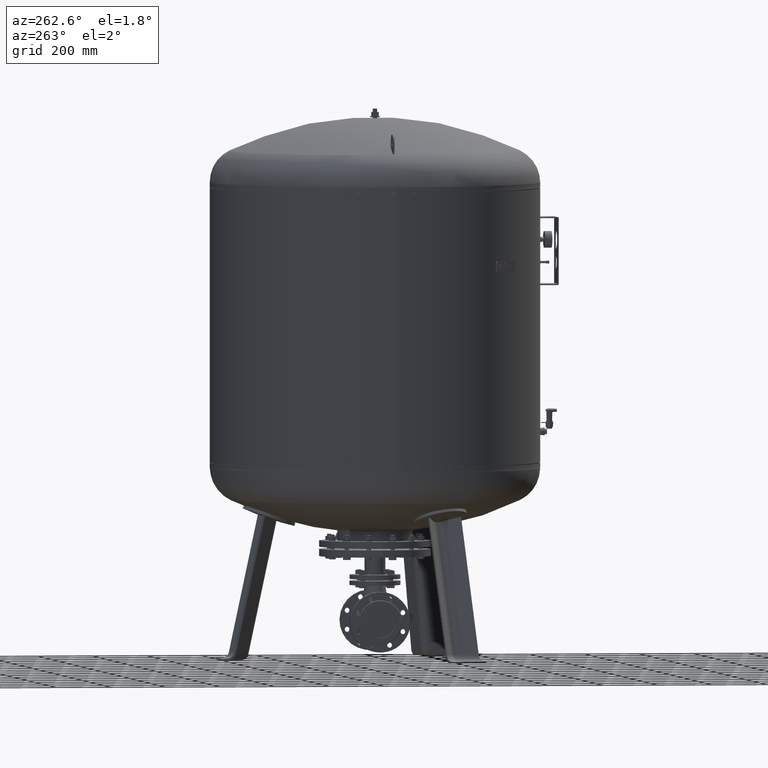
[diagram: clean part render]
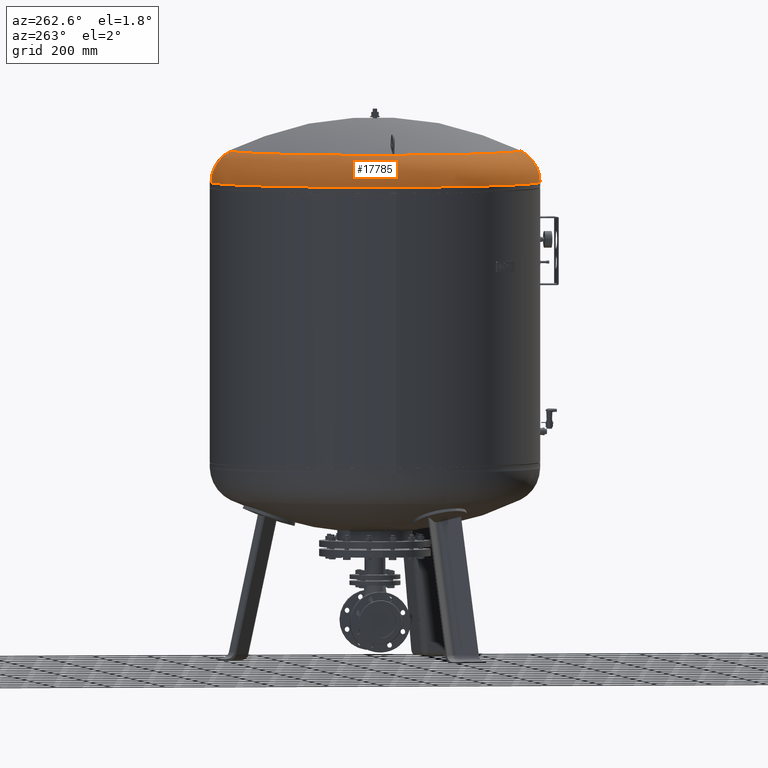
[diagram: same view with one face highlighted and labeled with its STEP entity id]
A machine part, auxiliary view. The second image highlights one B-rep face of the part: STEP entity #17785.
In plain terms, the highlighted toroidal blend (fillet) surface has major radius 473 mm and minor (blend) radius 127 mm.
Its self-contained STEP definition (entity closure, byte-faithful):
#17164=CARTESIAN_POINT('',(-599.999999999999890,3.010780E-014,1732.912457433727700));
#17165=VERTEX_POINT('',#17164);
#17172=CARTESIAN_POINT('',(1.156183E-013,600.0,1732.912457433727700));
#17173=VERTEX_POINT('',#17172);
#17174=CARTESIAN_POINT('',(6.604942E-015,-4.336858E-014,1732.912457433727700));
#17175=DIRECTION('',(0.0,0.0,-1.0));
#17176=DIRECTION('',(1.0,0.0,0.0));
#17177=AXIS2_PLACEMENT_3D('',#17174,#17175,#17176);
#17178=CIRCLE('',#17177,600.0);
#17179=EDGE_CURVE('',#17165,#17173,#17178,.T.);
#17196=CARTESIAN_POINT('',(4.214189E-014,-600.0,1732.912457433727700));
#17197=VERTEX_POINT('',#17196);
#17198=CARTESIAN_POINT('',(3.894773E-014,-528.621296296296240,1847.084570483805000));
#17199=VERTEX_POINT('',#17198);
#17200=CARTESIAN_POINT('',(4.214189E-014,-472.999999999999940,1732.912457433727700));
#17201=DIRECTION('',(-1.0,0.0,0.0));
#17202=DIRECTION('',(0.0,-1.0,0.0));
#17203=AXIS2_PLACEMENT_3D('',#17200,#17201,#17202);
#17204=CIRCLE('',#17203,127.000000000000010);
#17205=EDGE_CURVE('',#17197,#17199,#17204,.T.);
#17215=CARTESIAN_POINT('',(1.036830E-013,528.621296296296240,1847.084570483805000));
#17216=VERTEX_POINT('',#17215);
#17217=CARTESIAN_POINT('',(1.000658E-013,472.999999999999830,1732.912457433727700));
#17218=DIRECTION('',(1.0,0.0,0.0));
#17219=DIRECTION('',(0.0,1.0,0.0));
#17220=AXIS2_PLACEMENT_3D('',#17217,#17218,#17219);
#17221=CIRCLE('',#17220,127.000000000000010);
#17222=EDGE_CURVE('',#17173,#17216,#17221,.T.);
#17757=CARTESIAN_POINT('',(3.410787E-015,-2.239550E-014,1847.084570483805000));
#17758=DIRECTION('',(0.0,0.0,-1.0));
#17759=DIRECTION('',(1.0,0.0,0.0));
#17760=AXIS2_PLACEMENT_3D('',#17757,#17758,#17759);
#17761=CIRCLE('',#17760,528.621296296296240);
#17762=EDGE_CURVE('',#17199,#17216,#17761,.T.);
#17767=CARTESIAN_POINT('',(4.214189E-014,-4.336858E-014,1732.912457433727700));
#17768=DIRECTION('',(2.797667E-017,-1.836970E-016,-1.0));
#17769=DIRECTION('',(0.0,-1.0,0.0));
#17770=AXIS2_PLACEMENT_3D('',#17767,#17768,#17769);
#17771=TOROIDAL_SURFACE('',#17770,472.999999999999890,127.000000000000010);
#17772=ORIENTED_EDGE('',*,*,#17205,.T.);
#17773=ORIENTED_EDGE('',*,*,#17762,.T.);
#17774=ORIENTED_EDGE('',*,*,#17222,.F.);
#17775=ORIENTED_EDGE('',*,*,#17179,.F.);
#17776=CARTESIAN_POINT('',(6.604942E-015,-4.336858E-014,1732.912457433727700));
#17777=DIRECTION('',(0.0,0.0,-1.0));
#17778=DIRECTION('',(1.0,0.0,0.0));
#17779=AXIS2_PLACEMENT_3D('',#17776,#17777,#17778);
#17780=CIRCLE('',#17779,600.0);
#17781=EDGE_CURVE('',#17197,#17165,#17780,.T.);
#17782=ORIENTED_EDGE('',*,*,#17781,.F.);
#17783=EDGE_LOOP('',(#17772,#17773,#17774,#17775,#17782));
#17784=FACE_OUTER_BOUND('',#17783,.T.);
#17785=ADVANCED_FACE('',(#17784),#17771,.T.);